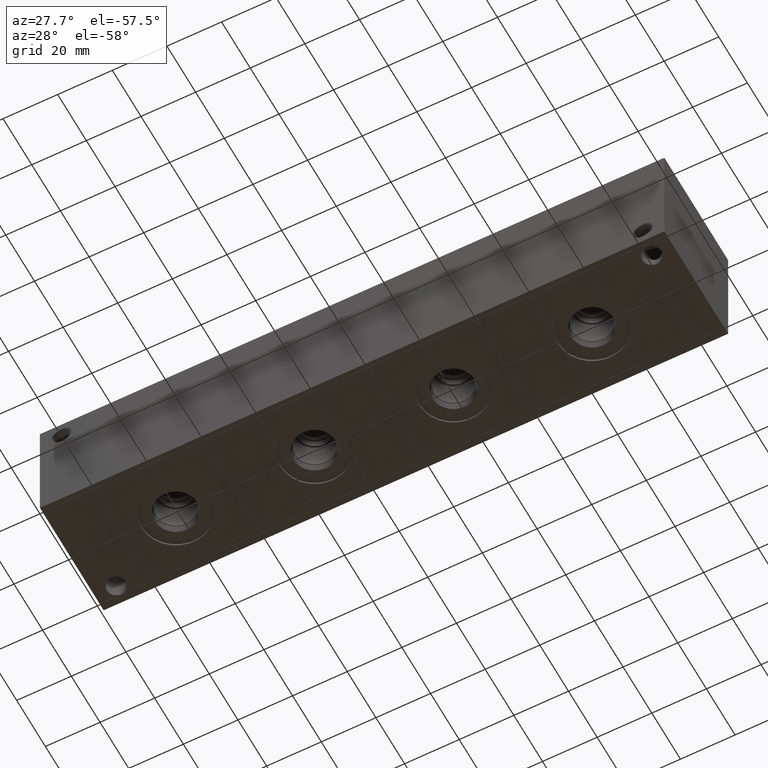
[diagram: clean part render]
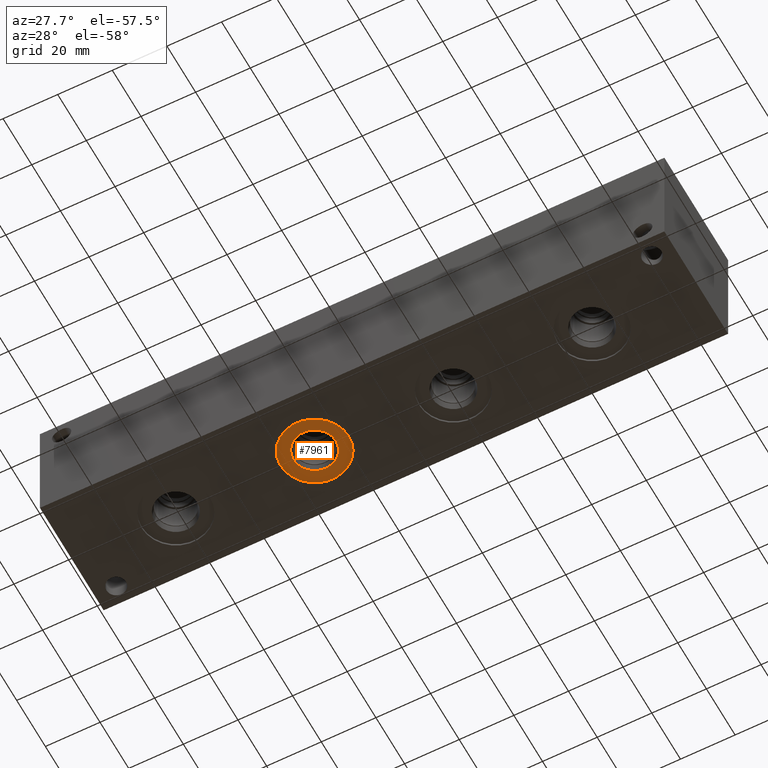
[diagram: same view with one face highlighted and labeled with its STEP entity id]
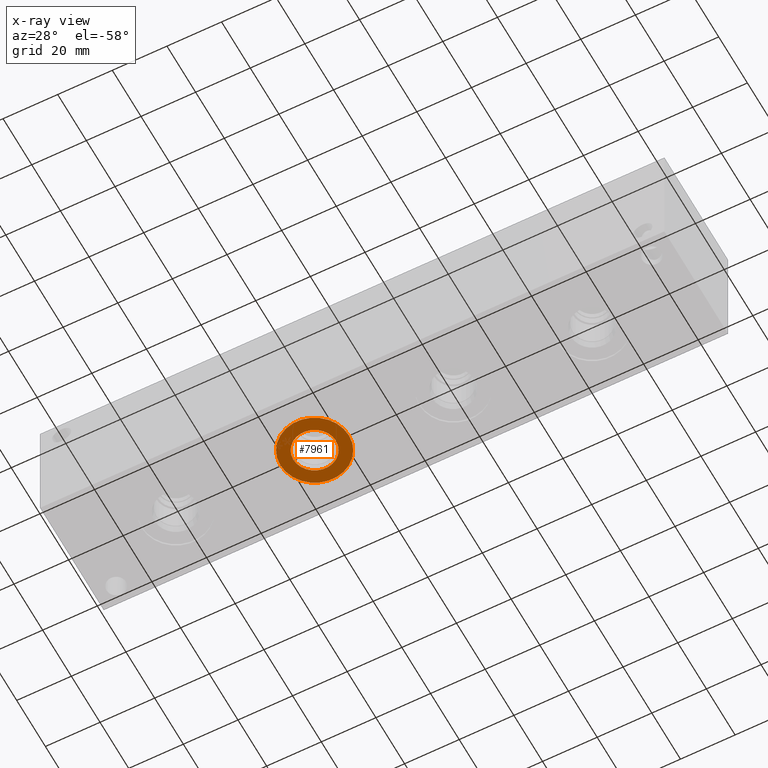
[diagram: x-ray of the same camera — body ghosted, the highlighted face saturated]
A machine part, auxiliary view. The second image highlights one B-rep face of the part: STEP entity #7961.
The next image is the same camera in x-ray: the body ghosted, the highlighted face saturated — about 0% of this face is hidden behind the body in this view.
In plain terms, the highlighted planar face has unit normal (0, 0, 1).
Its self-contained STEP definition (entity closure, byte-faithful):
#138=CIRCLE('',#8322,12.5095);
#139=CIRCLE('',#8323,12.5095);
#140=CIRCLE('',#8325,7.79780000000001);
#141=CIRCLE('',#8326,7.79780000000001);
#303=FACE_BOUND('',#1335,.T.);
#538=PLANE('',#8324);
#882=FACE_OUTER_BOUND('',#1334,.T.);
#1334=EDGE_LOOP('',(#6774,#6775));
#1335=EDGE_LOOP('',(#6776,#6777));
#3737=VERTEX_POINT('',#13438);
#3738=VERTEX_POINT('',#13440);
#3739=VERTEX_POINT('',#13444);
#3740=VERTEX_POINT('',#13445);
#4782=EDGE_CURVE('',#3737,#3738,#138,.T.);
#4783=EDGE_CURVE('',#3738,#3737,#139,.T.);
#4784=EDGE_CURVE('',#3739,#3740,#140,.T.);
#4785=EDGE_CURVE('',#3740,#3739,#141,.T.);
#6774=ORIENTED_EDGE('',*,*,#4783,.F.);
#6775=ORIENTED_EDGE('',*,*,#4782,.F.);
#6776=ORIENTED_EDGE('',*,*,#4784,.T.);
#6777=ORIENTED_EDGE('',*,*,#4785,.T.);
#7961=ADVANCED_FACE('',(#882,#303),#538,.F.);
#8322=AXIS2_PLACEMENT_3D('',#13441,#9720,#9721);
#8323=AXIS2_PLACEMENT_3D('',#13442,#9722,#9723);
#8324=AXIS2_PLACEMENT_3D('',#13443,#9724,#9725);
#8325=AXIS2_PLACEMENT_3D('',#13446,#9726,#9727);
#8326=AXIS2_PLACEMENT_3D('',#13447,#9728,#9729);
#9720=DIRECTION('center_axis',(0.,0.,1.));
#9721=DIRECTION('ref_axis',(1.,0.,0.));
#9722=DIRECTION('center_axis',(0.,0.,1.));
#9723=DIRECTION('ref_axis',(1.,0.,0.));
#9724=DIRECTION('center_axis',(0.,0.,1.));
#9725=DIRECTION('ref_axis',(1.,0.,0.));
#9726=DIRECTION('center_axis',(0.,0.,1.));
#9727=DIRECTION('ref_axis',(1.,0.,0.));
#9728=DIRECTION('center_axis',(0.,0.,1.));
#9729=DIRECTION('ref_axis',(1.,0.,0.));
#13438=CARTESIAN_POINT('',(76.3905,22.225,0.7874));
#13440=CARTESIAN_POINT('',(101.4095,22.225,0.7874));
#13441=CARTESIAN_POINT('Origin',(88.9,22.225,0.7874));
#13442=CARTESIAN_POINT('Origin',(88.9,22.225,0.7874));
#13443=CARTESIAN_POINT('Origin',(96.6978,22.225,0.7874));
#13444=CARTESIAN_POINT('',(96.6978,22.225,0.7874));
#13445=CARTESIAN_POINT('',(81.1022,22.225,0.787399999999998));
#13446=CARTESIAN_POINT('Origin',(88.9,22.225,0.7874));
#13447=CARTESIAN_POINT('Origin',(88.9,22.225,0.7874));